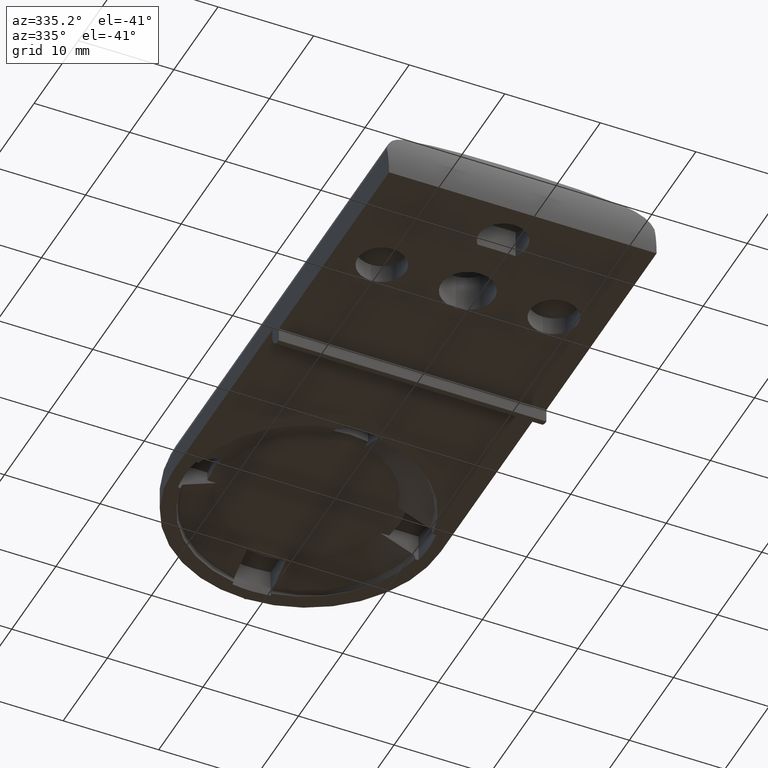
[diagram: clean part render]
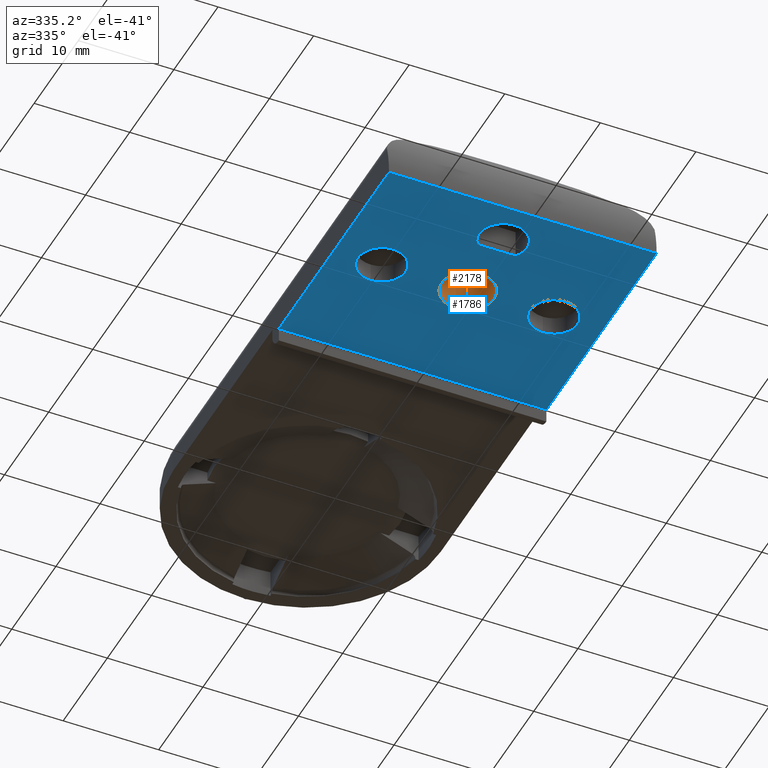
[diagram: same view with the hole feature highlighted: cylindrical wall and planar end face, labeled with their STEP entity ids]
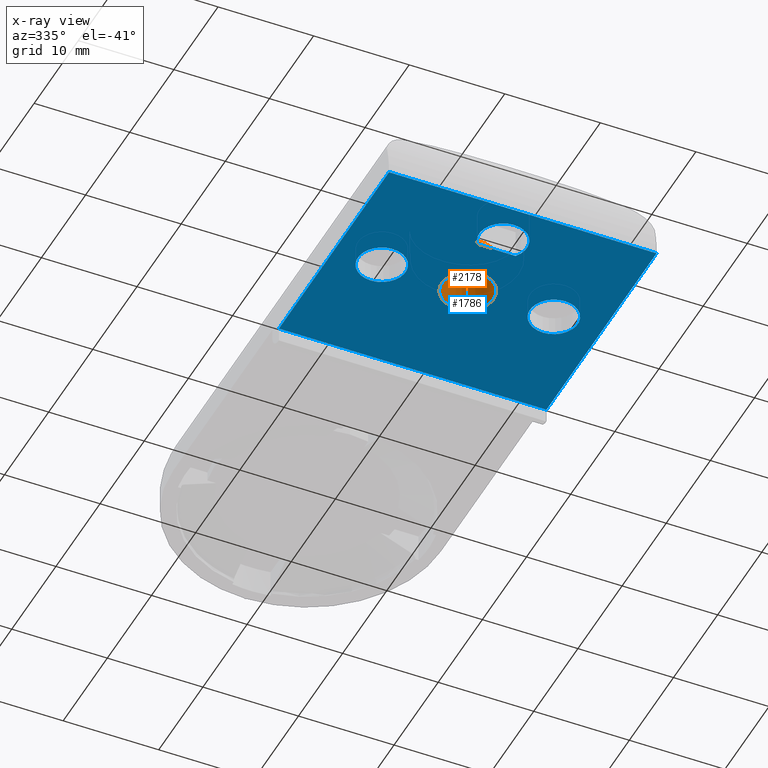
[diagram: x-ray of the same camera — body ghosted, the hole faces saturated]
A machine part, auxiliary view. The highlighted faces form one hole feature of diameter 5.501 mm: the cylindrical wall (entity #2178, orange) and its adjacent planar end face (entity #1786, blue) — they share a circular edge in the B-rep.
The next image is the same camera in x-ray (body ghosted, the hole faces saturated) — the bore reads through the body.
Wall:
#1707=CARTESIAN_POINT('',(0.0,-2.750510516013151,0.0));
#1708=VERTEX_POINT('',#1707);
#1709=CARTESIAN_POINT('',(0.0,2.750510516013151,0.0));
#1710=VERTEX_POINT('',#1709);
#1711=CARTESIAN_POINT('',(0.0,0.0,0.0));
#1712=DIRECTION('',(1.246523E-016,0.0,-1.0));
#1713=DIRECTION('',(0.0,1.0,0.0));
#1714=AXIS2_PLACEMENT_3D('',#1711,#1712,#1713);
#1715=CIRCLE('',#1714,2.750510516013151);
#1716=EDGE_CURVE('',#1708,#1710,#1715,.T.);
#1718=CARTESIAN_POINT('',(0.0,0.0,0.0));
#1719=DIRECTION('',(1.246523E-016,0.0,-1.0));
#1720=DIRECTION('',(0.0,1.0,0.0));
#1721=AXIS2_PLACEMENT_3D('',#1718,#1719,#1720);
#1722=CIRCLE('',#1721,2.750510516013151);
#1723=EDGE_CURVE('',#1710,#1708,#1722,.T.);
#2144=CARTESIAN_POINT('',(0.0,0.0,0.0));
#2145=DIRECTION('',(1.246523E-016,0.0,-1.0));
#2146=DIRECTION('',(0.0,1.0,0.0));
#2147=AXIS2_PLACEMENT_3D('',#2144,#2145,#2146);
#2148=CYLINDRICAL_SURFACE('',#2147,2.750510516013151);
#2149=ORIENTED_EDGE('',*,*,#1723,.T.);
#2150=ORIENTED_EDGE('',*,*,#1716,.T.);
#2151=CARTESIAN_POINT('',(0.0,2.750510516013151,4.000975683706944));
#2152=VERTEX_POINT('',#2151);
#2153=CARTESIAN_POINT('',(0.0,2.750510516013151,0.0));
#2154=DIRECTION('',(0.0,0.0,1.0));
#2155=VECTOR('',#2154,4.000975683706943);
#2156=LINE('',#2153,#2155);
#2157=EDGE_CURVE('',#1710,#2152,#2156,.T.);
#2158=ORIENTED_EDGE('',*,*,#2157,.T.);
#2159=CARTESIAN_POINT('',(0.0,-2.750510516013151,4.000975683706944));
#2160=VERTEX_POINT('',#2159);
#2161=CARTESIAN_POINT('',(0.0,0.0,4.000975683706944));
#2162=DIRECTION('',(-0.009842958479192,0.0,0.999951556910822));
#2163=DIRECTION('',(0.999951556910822,0.0,0.009842958479192));
#2164=AXIS2_PLACEMENT_3D('',#2161,#2162,#2163);
#2165=ELLIPSE('',#2164,2.750643765694389,2.750510516013151);
#2166=EDGE_CURVE('',#2152,#2160,#2165,.T.);
#2167=ORIENTED_EDGE('',*,*,#2166,.T.);
#2168=CARTESIAN_POINT('',(0.0,0.0,4.000975683706944));
#2169=DIRECTION('',(-0.009842958479192,0.0,0.999951556910822));
#2170=DIRECTION('',(0.999951556910822,0.0,0.009842958479192));
#2171=AXIS2_PLACEMENT_3D('',#2168,#2169,#2170);
#2172=ELLIPSE('',#2171,2.750643765694389,2.750510516013151);
#2173=EDGE_CURVE('',#2160,#2152,#2172,.T.);
#2174=ORIENTED_EDGE('',*,*,#2173,.T.);
#2175=ORIENTED_EDGE('',*,*,#2157,.F.);
#2176=EDGE_LOOP('',(#2149,#2150,#2158,#2167,#2174,#2175));
#2177=FACE_OUTER_BOUND('',#2176,.T.);
#2178=ADVANCED_FACE('',(#2177),#2148,.F.);
End face:
#1668=CARTESIAN_POINT('',(14.008300000372401,-26.507689484426010,0.0));
#1669=DIRECTION('',(0.0,0.0,1.0));
#1670=DIRECTION('',(0.0,1.0,0.0));
#1671=AXIS2_PLACEMENT_3D('',#1668,#1669,#1670);
#1672=PLANE('',#1671);
#1673=CARTESIAN_POINT('',(13.999997222043930,12.500510515872861,0.0));
#1674=VERTEX_POINT('',#1673);
#1675=CARTESIAN_POINT('',(13.999990290328242,-12.452065676340965,0.0));
#1676=VERTEX_POINT('',#1675);
#1677=CARTESIAN_POINT('',(13.999997222044023,12.500510515872884,0.0));
#1678=DIRECTION('',(-0.000000277795598,-0.999999999999961,0.0));
#1679=VECTOR('',#1678,24.952576192214810);
#1680=LINE('',#1677,#1679);
#1681=EDGE_CURVE('',#1674,#1676,#1680,.T.);
#1682=ORIENTED_EDGE('',*,*,#1681,.T.);
#1683=CARTESIAN_POINT('',(-14.0,-12.452065676340965,-3.552714E-015));
#1684=VERTEX_POINT('',#1683);
#1685=CARTESIAN_POINT('',(13.999990290328242,-12.452065676340965,-4.834925E-013));
#1686=DIRECTION('',(-1.0,0.0,0.0));
#1687=VECTOR('',#1686,27.999990290328242);
#1688=LINE('',#1685,#1687);
#1689=EDGE_CURVE('',#1676,#1684,#1688,.T.);
#1690=ORIENTED_EDGE('',*,*,#1689,.T.);
#1691=CARTESIAN_POINT('',(-14.0,12.500510516013492,-3.552714E-015));
#1692=VERTEX_POINT('',#1691);
#1693=CARTESIAN_POINT('',(-14.0,-12.452065676340965,-3.552714E-015));
#1694=DIRECTION('',(0.0,1.0,0.0));
#1695=VECTOR('',#1694,24.952576192354456);
#1696=LINE('',#1693,#1695);
#1697=EDGE_CURVE('',#1684,#1692,#1696,.T.);
#1698=ORIENTED_EDGE('',*,*,#1697,.T.);
#1699=CARTESIAN_POINT('',(13.999997222043930,12.500510515872861,0.0));
#1700=DIRECTION('',(-1.0,5.022523E-012,-1.268826E-016));
#1701=VECTOR('',#1700,27.999997222043930);
#1702=LINE('',#1699,#1701);
#1703=EDGE_CURVE('',#1674,#1692,#1702,.T.);
#1704=ORIENTED_EDGE('',*,*,#1703,.F.);
#1705=EDGE_LOOP('',(#1682,#1690,#1698,#1704));
#1706=FACE_OUTER_BOUND('',#1705,.T.);
#1707=CARTESIAN_POINT('',(0.0,-2.750510516013151,0.0));
#1708=VERTEX_POINT('',#1707);
#1709=CARTESIAN_POINT('',(0.0,2.750510516013151,0.0));
#1710=VERTEX_POINT('',#1709);
#1711=CARTESIAN_POINT('',(0.0,0.0,0.0));
#1712=DIRECTION('',(1.246523E-016,0.0,-1.0));
#1713=DIRECTION('',(0.0,1.0,0.0));
#1714=AXIS2_PLACEMENT_3D('',#1711,#1712,#1713);
#1715=CIRCLE('',#1714,2.750510516013151);
#1716=EDGE_CURVE('',#1708,#1710,#1715,.T.);
#1717=ORIENTED_EDGE('',*,*,#1716,.F.);
#1718=CARTESIAN_POINT('',(0.0,0.0,0.0));
#1719=DIRECTION('',(1.246523E-016,0.0,-1.0));
#1720=DIRECTION('',(0.0,1.0,0.0));
#1721=AXIS2_PLACEMENT_3D('',#1718,#1719,#1720);
#1722=CIRCLE('',#1721,2.750510516013151);
#1723=EDGE_CURVE('',#1710,#1708,#1722,.T.);
#1724=ORIENTED_EDGE('',*,*,#1723,.F.);
#1725=EDGE_LOOP('',(#1717,#1724));
#1726=FACE_BOUND('',#1725,.T.);
#1727=CARTESIAN_POINT('',(-9.000000000000910,-2.499999999999659,-3.552714E-015));
#1728=VERTEX_POINT('',#1727);
#1729=CARTESIAN_POINT('',(-9.000000000000910,2.500000000000341,-3.552714E-015));
#1730=VERTEX_POINT('',#1729);
#1731=CARTESIAN_POINT('',(-9.000000000000910,3.410605E-013,-3.552714E-015));
#1732=DIRECTION('',(1.246523E-016,0.0,-1.0));
#1733=DIRECTION('',(0.0,1.0,0.0));
#1734=AXIS2_PLACEMENT_3D('',#1731,#1732,#1733);
#1735=CIRCLE('',#1734,2.500000000000000);
#1736=EDGE_CURVE('',#1728,#1730,#1735,.T.);
#1737=ORIENTED_EDGE('',*,*,#1736,.F.);
#1738=CARTESIAN_POINT('',(-9.000000000000910,3.410605E-013,-3.552714E-015));
#1739=DIRECTION('',(1.246523E-016,0.0,-1.0));
#1740=DIRECTION('',(0.0,1.0,0.0));
#1741=AXIS2_PLACEMENT_3D('',#1738,#1739,#1740);
#1742=CIRCLE('',#1741,2.500000000000000);
#1743=EDGE_CURVE('',#1730,#1728,#1742,.T.);
#1744=ORIENTED_EDGE('',*,*,#1743,.F.);
#1745=EDGE_LOOP('',(#1737,#1744));
#1746=FACE_BOUND('',#1745,.T.);
#1747=CARTESIAN_POINT('',(9.0,-2.500000000000000,0.0));
#1748=VERTEX_POINT('',#1747);
#1749=CARTESIAN_POINT('',(9.0,2.500000000000000,0.0));
#1750=VERTEX_POINT('',#1749);
#1751=CARTESIAN_POINT('',(9.0,0.0,0.0));
#1752=DIRECTION('',(1.246523E-016,0.0,-1.0));
#1753=DIRECTION('',(0.0,1.0,0.0));
#1754=AXIS2_PLACEMENT_3D('',#1751,#1752,#1753);
#1755=CIRCLE('',#1754,2.500000000000000);
#1756=EDGE_CURVE('',#1748,#1750,#1755,.T.);
#1757=ORIENTED_EDGE('',*,*,#1756,.F.);
#1758=CARTESIAN_POINT('',(9.0,0.0,0.0));
#1759=DIRECTION('',(1.246523E-016,0.0,-1.0));
#1760=DIRECTION('',(0.0,1.0,0.0));
#1761=AXIS2_PLACEMENT_3D('',#1758,#1759,#1760);
#1762=CIRCLE('',#1761,2.500000000000000);
#1763=EDGE_CURVE('',#1750,#1748,#1762,.T.);
#1764=ORIENTED_EDGE('',*,*,#1763,.F.);
#1765=EDGE_LOOP('',(#1757,#1764));
#1766=FACE_BOUND('',#1765,.T.);
#1767=CARTESIAN_POINT('',(2.0,-6.489144591959928,-7.105427E-015));
#1768=VERTEX_POINT('',#1767);
#1769=CARTESIAN_POINT('',(-2.0,-6.489144591959871,0.0));
#1770=VERTEX_POINT('',#1769);
#1771=CARTESIAN_POINT('',(3.403058E-031,-7.989144591960099,-7.105427E-015));
#1772=DIRECTION('',(4.487484E-017,-5.983312E-017,-1.000000000000000));
#1773=DIRECTION('',(0.799999999999967,0.600000000000044,0.0));
#1774=AXIS2_PLACEMENT_3D('',#1771,#1772,#1773);
#1775=CIRCLE('',#1774,2.500000000000080);
#1776=EDGE_CURVE('',#1768,#1770,#1775,.T.);
#1777=ORIENTED_EDGE('',*,*,#1776,.F.);
#1778=CARTESIAN_POINT('',(-1.999999999999928,-6.489144591959871,0.0));
#1779=DIRECTION('',(1.0,0.0,0.0));
#1780=VECTOR('',#1779,3.999999999999019);
#1781=LINE('',#1778,#1780);
#1782=EDGE_CURVE('',#1770,#1768,#1781,.T.);
#1783=ORIENTED_EDGE('',*,*,#1782,.F.);
#1784=EDGE_LOOP('',(#1777,#1783));
#1785=FACE_BOUND('',#1784,.T.);
#1786=ADVANCED_FACE('',(#1706,#1726,#1746,#1766,#1785),#1672,.F.);